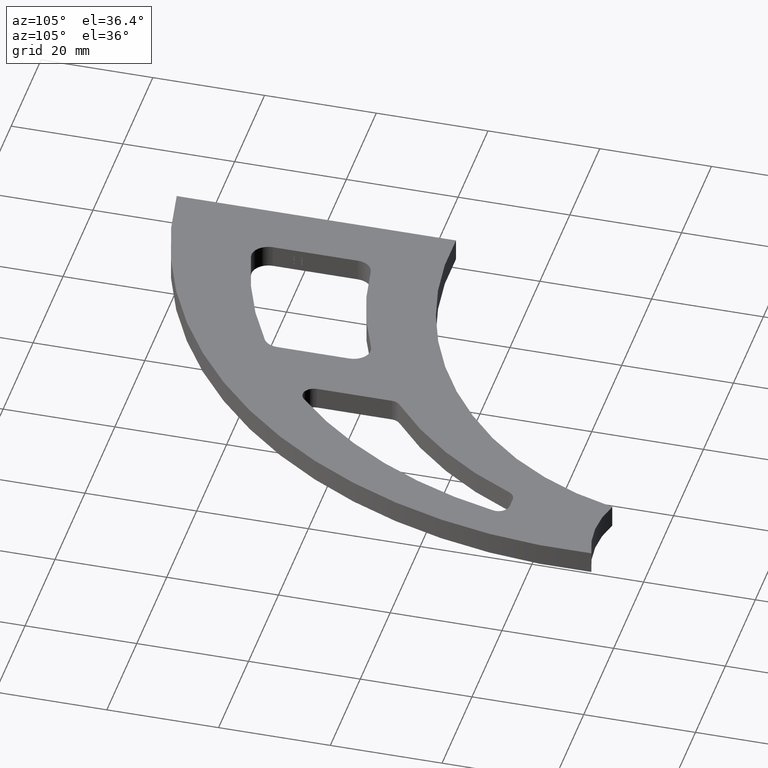
[diagram: clean part render]
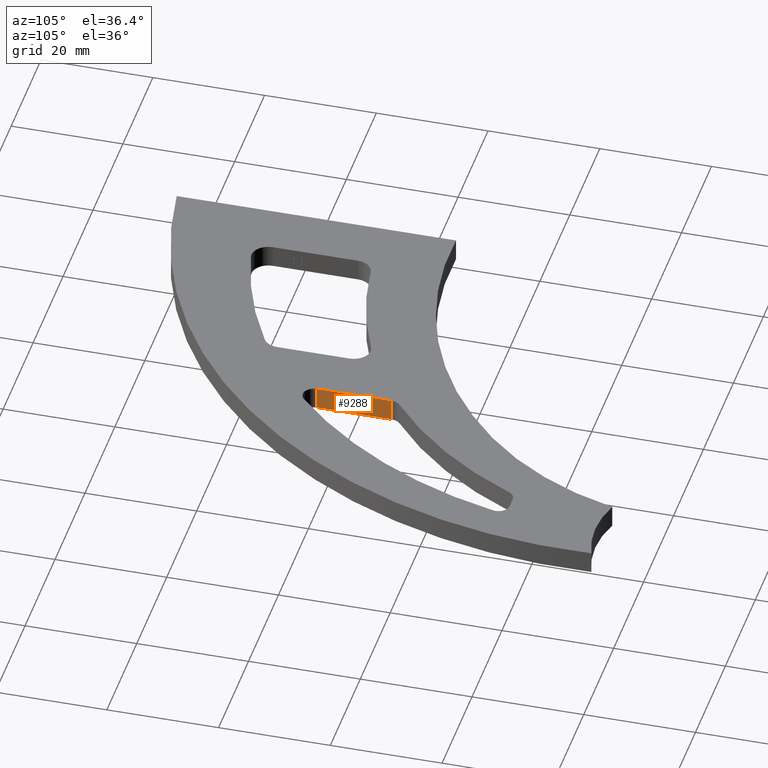
[diagram: same view with one face highlighted and labeled with its STEP entity id]
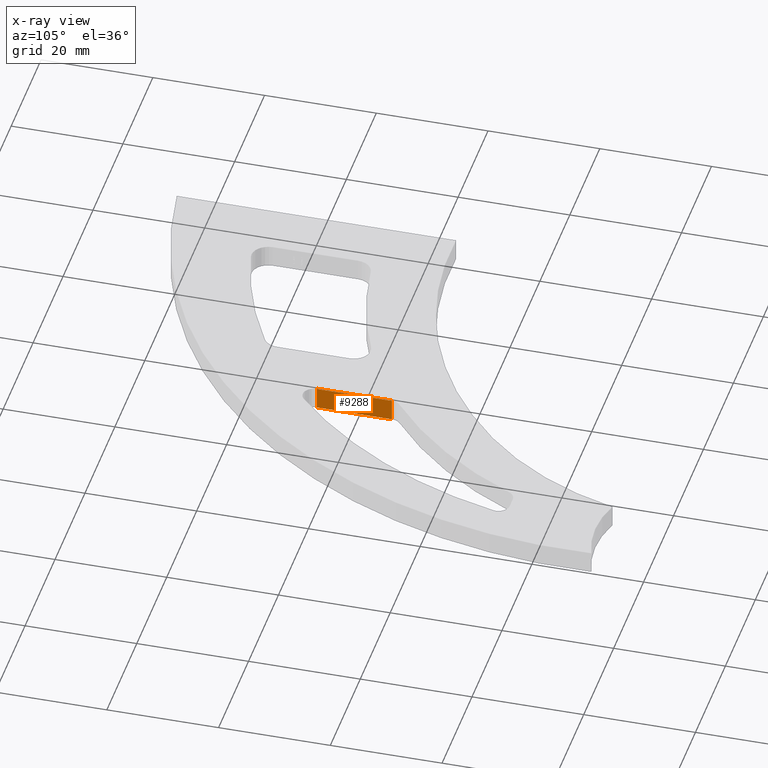
[diagram: x-ray of the same camera — body ghosted, the highlighted face saturated]
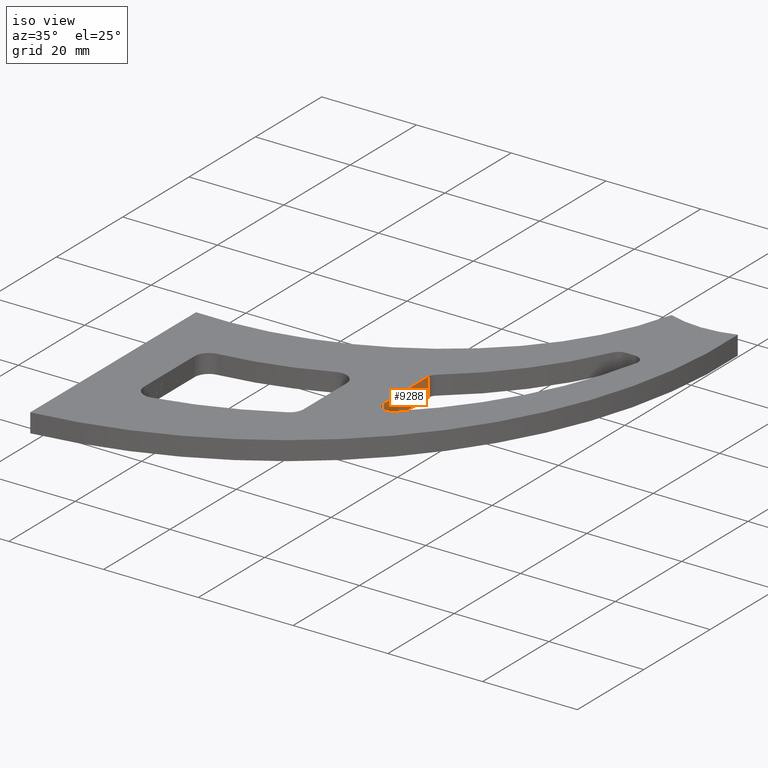
[diagram: same view with one face highlighted and labeled with its STEP entity id]
A machine part, auxiliary view. The second image highlights one B-rep face of the part: STEP entity #9288.
The next image is the same camera in x-ray: the body ghosted, the highlighted face saturated — about 0% of this face is hidden behind the body in this view.
A second angle (iso view) of the same face is appended — the face is thin or edge-on in the first view.
In plain terms, the highlighted planar face has unit normal (1, 0, 0).
Its self-contained STEP definition (entity closure, byte-faithful):
#97 = PLANE ( 'NONE',  #12926 ) ;
#318 = LINE ( 'NONE', #11806, #7045 ) ;
#388 = DIRECTION ( 'NONE',  ( 3.686719223322513734E-16, -1.000000000000000000, 0.000000000000000000 ) ) ;
#506 = CARTESIAN_POINT ( 'NONE',  ( 48.00000000000022027, 27.35105087009876002, 2.000000000000001776 ) ) ;
#1039 = DIRECTION ( 'NONE',  ( 1.000000000000000000, 3.686719223322513734E-16, 0.000000000000000000 ) ) ;
#2149 = ORIENTED_EDGE ( 'NONE', *, *, #12160, .F. ) ;
#2176 = LINE ( 'NONE', #11486, #4842 ) ;
#2512 = LINE ( 'NONE', #506, #10063 ) ;
#3100 = ORIENTED_EDGE ( 'NONE', *, *, #9085, .T. ) ;
#4190 = VERTEX_POINT ( 'NONE', #10690 ) ;
#4192 = DIRECTION ( 'NONE',  ( -3.686719223322513734E-16, 1.000000000000000000, 0.000000000000000000 ) ) ;
#4596 = DIRECTION ( 'NONE',  ( -0.000000000000000000, -0.000000000000000000, 1.000000000000000000 ) ) ;
#4842 = VECTOR ( 'NONE', #4596, 1000.000000000000000 ) ;
#5430 = CARTESIAN_POINT ( 'NONE',  ( 48.00000000000022737, 12.96476753913849933, -2.000000000000000000 ) ) ;
#5567 = EDGE_LOOP ( 'NONE', ( #3100, #12293, #2149, #6425 ) ) ;
#5718 = VERTEX_POINT ( 'NONE', #5430 ) ;
#6425 = ORIENTED_EDGE ( 'NONE', *, *, #11644, .T. ) ;
#6919 = VECTOR ( 'NONE', #7866, 1000.000000000000000 ) ;
#7045 = VECTOR ( 'NONE', #12844, 1000.000000000000000 ) ;
#7082 = CARTESIAN_POINT ( 'NONE',  ( 48.00000000000022027, 27.35105087009876002, 29.77626419141211755 ) ) ;
#7105 = VERTEX_POINT ( 'NONE', #7642 ) ;
#7222 = FACE_OUTER_BOUND ( 'NONE', #5567, .T. ) ;
#7642 = CARTESIAN_POINT ( 'NONE',  ( 48.00000000000022737, 12.96476753913849933, 2.000000000000001776 ) ) ;
#7866 = DIRECTION ( 'NONE',  ( 0.000000000000000000, -0.000000000000000000, -1.000000000000000000 ) ) ;
#8334 = EDGE_CURVE ( 'NONE', #7105, #5718, #9136, .T. ) ;
#8399 = CARTESIAN_POINT ( 'NONE',  ( 48.00000000000022027, 26.37792976689282298, 2.000000000000001776 ) ) ;
#9085 = EDGE_CURVE ( 'NONE', #11574, #7105, #2512, .T. ) ;
#9136 = LINE ( 'NONE', #10808, #6919 ) ;
#9288 = ADVANCED_FACE ( 'NONE', ( #7222 ), #97, .T. ) ;
#10063 = VECTOR ( 'NONE', #388, 1000.000000000000000 ) ;
#10690 = CARTESIAN_POINT ( 'NONE',  ( 48.00000000000022027, 26.37792976689282298, -2.000000000000000000 ) ) ;
#10808 = CARTESIAN_POINT ( 'NONE',  ( 48.00000000000022737, 12.96476753913849933, -2.000000000000000000 ) ) ;
#11486 = CARTESIAN_POINT ( 'NONE',  ( 48.00000000000022027, 26.37792976689282298, 29.77626419141211755 ) ) ;
#11574 = VERTEX_POINT ( 'NONE', #8399 ) ;
#11644 = EDGE_CURVE ( 'NONE', #4190, #11574, #2176, .T. ) ;
#11806 = CARTESIAN_POINT ( 'NONE',  ( 48.00000000000022027, 27.35105087009876002, -2.000000000000000000 ) ) ;
#12160 = EDGE_CURVE ( 'NONE', #4190, #5718, #318, .T. ) ;
#12293 = ORIENTED_EDGE ( 'NONE', *, *, #8334, .T. ) ;
#12844 = DIRECTION ( 'NONE',  ( 3.686719223322513734E-16, -1.000000000000000000, 0.000000000000000000 ) ) ;
#12926 = AXIS2_PLACEMENT_3D ( 'NONE', #7082, #1039, #4192 ) ;